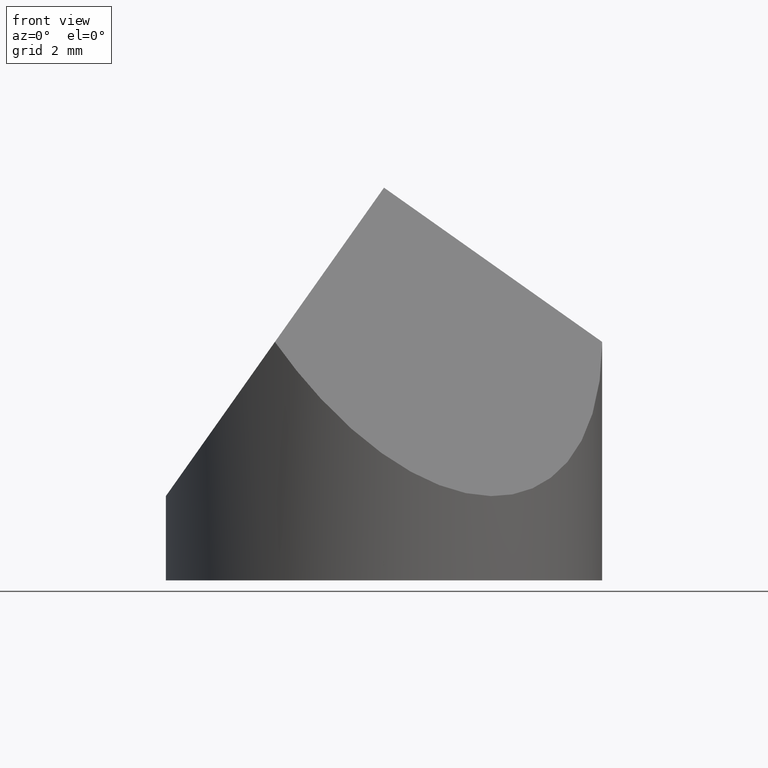
[diagram: clean part render]
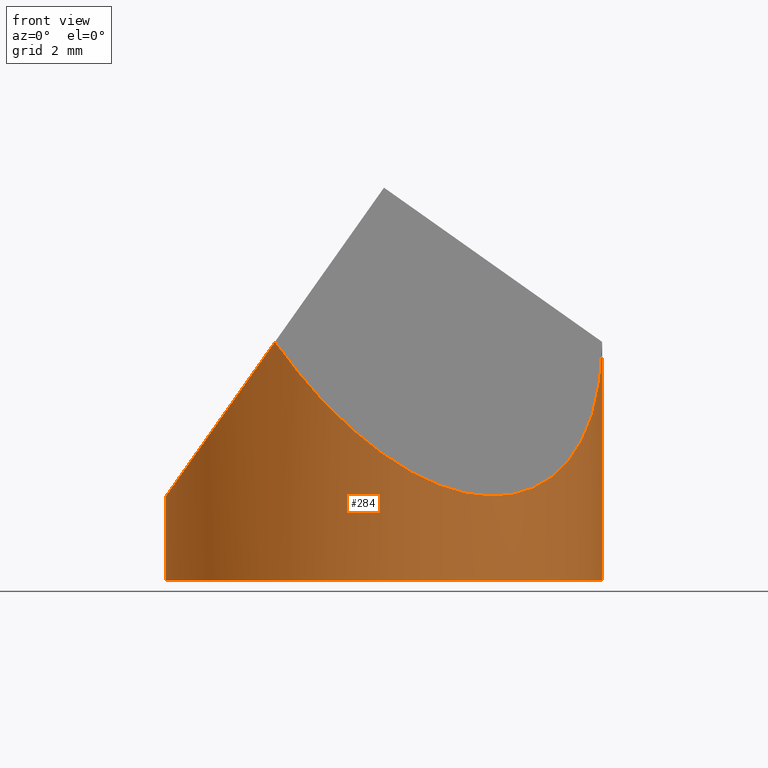
[diagram: same view with one face highlighted and labeled with its STEP entity id]
A machine part, front view. The second image highlights one B-rep face of the part: STEP entity #284.
In plain terms, the highlighted cylindrical surface (partial cylindrical patch) has radius 5 mm, axis along (-0, -0, -1).
Its self-contained STEP definition (entity closure, byte-faithful):
#2 = EDGE_CURVE ( 'NONE', #269, #208, #50, .T. ) ;
#17 = DIRECTION ( 'NONE',  ( -0.0000000000000000000, -0.0000000000000000000, -1.000000000000000000 ) ) ;
#31 = EDGE_CURVE ( 'NONE', #66, #208, #161, .T. ) ;
#32 = ORIENTED_EDGE ( 'NONE', *, *, #144, .T. ) ;
#47 = CARTESIAN_POINT ( 'NONE',  ( 1.249999999999996000, -6.495190528383294500, 0.1630009529932650000 ) ) ;
#50 = LINE ( 'NONE', #311, #280 ) ;
#52 = FACE_OUTER_BOUND ( 'NONE', #229, .T. ) ;
#59 = CYLINDRICAL_SURFACE ( 'NONE', #107, 5.000000000000000000 ) ;
#63 = CARTESIAN_POINT ( 'NONE',  ( 0.0000000000000000000, 0.0000000000000000000, 9.000000000000000000 ) ) ;
#66 = VERTEX_POINT ( 'NONE', #264 ) ;
#74 = LINE ( 'NONE', #150, #293 ) ;
#78 = EDGE_CURVE ( 'NONE', #269, #154, #282, .T. ) ;
#90 = CARTESIAN_POINT ( 'NONE',  ( -5.000000000000000000, 0.0000000000000000000, 1.930400762394619300 ) ) ;
#92 = ORIENTED_EDGE ( 'NONE', *, *, #2, .F. ) ;
#106 =( BOUNDED_CURVE ( )  B_SPLINE_CURVE ( 3, ( #133, #289, #238, #90 ),
 .UNSPECIFIED., .F., .T. ) 
 B_SPLINE_CURVE_WITH_KNOTS ( ( 4, 4 ),
 ( 5.235987755982989700, 6.283185307179586200 ),
 .UNSPECIFIED. ) 
 CURVE ( )  GEOMETRIC_REPRESENTATION_ITEM ( )  RATIONAL_B_SPLINE_CURVE ( ( 1.000000000000000000, 0.9106836025229592100, 0.9106836025229592100, 1.000000000000000000 ) ) 
 REPRESENTATION_ITEM ( '' )  );
#107 = AXIS2_PLACEMENT_3D ( 'NONE', #63, #277, #231 ) ;
#111 = DIRECTION ( 'NONE',  ( -0.0000000000000000000, -0.0000000000000000000, -1.000000000000000000 ) ) ;
#123 = ORIENTED_EDGE ( 'NONE', *, *, #204, .T. ) ;
#129 = ORIENTED_EDGE ( 'NONE', *, *, #31, .T. ) ;
#133 = CARTESIAN_POINT ( 'NONE',  ( -2.500000000000008400, -4.330127018922198100, 5.465200381197298900 ) ) ;
#144 = EDGE_CURVE ( 'NONE', #154, #148, #106, .T. ) ;
#145 = ORIENTED_EDGE ( 'NONE', *, *, #78, .T. ) ;
#148 = VERTEX_POINT ( 'NONE', #207 ) ;
#150 = CARTESIAN_POINT ( 'NONE',  ( -5.000000000000000000, 0.0000000000000000000, 9.000000000000000000 ) ) ;
#154 = VERTEX_POINT ( 'NONE', #203 ) ;
#161 = CIRCLE ( 'NONE', #192, 5.000000000000000000 ) ;
#166 = DIRECTION ( 'NONE',  ( 1.000000000000000000, 0.0000000000000000000, 0.0000000000000000000 ) ) ;
#189 = CARTESIAN_POINT ( 'NONE',  ( 5.000000000000000900, -4.330127018922195400, 0.1630009529932771300 ) ) ;
#192 = AXIS2_PLACEMENT_3D ( 'NONE', #310, #259, #166 ) ;
#203 = CARTESIAN_POINT ( 'NONE',  ( -2.500000000000008400, -4.330127018922198100, 5.465200381197298900 ) ) ;
#204 = EDGE_CURVE ( 'NONE', #148, #66, #74, .T. ) ;
#207 = CARTESIAN_POINT ( 'NONE',  ( -5.000000000000000000, 0.0000000000000000000, 1.930400762394619300 ) ) ;
#208 = VERTEX_POINT ( 'NONE', #283 ) ;
#218 = CARTESIAN_POINT ( 'NONE',  ( -2.500000000000008400, -4.330127018922198100, 5.465200381197298900 ) ) ;
#229 = EDGE_LOOP ( 'NONE', ( #92, #145, #32, #123, #129 ) ) ;
#231 = DIRECTION ( 'NONE',  ( -1.000000000000000000, 0.0000000000000000000, 0.0000000000000000000 ) ) ;
#238 = CARTESIAN_POINT ( 'NONE',  ( -5.000000000000000000, -1.830127018922190500, 1.930400762394619100 ) ) ;
#240 = CARTESIAN_POINT ( 'NONE',  ( 5.000000000000004400, 9.161633835790454200E-016, 5.465200381197320200 ) ) ;
#259 = DIRECTION ( 'NONE',  ( 0.0000000000000000000, 0.0000000000000000000, 1.000000000000000000 ) ) ;
#264 = CARTESIAN_POINT ( 'NONE',  ( -5.000000000000000000, 0.0000000000000000000, 0.0000000000000000000 ) ) ;
#269 = VERTEX_POINT ( 'NONE', #305 ) ;
#277 = DIRECTION ( 'NONE',  ( -0.0000000000000000000, -0.0000000000000000000, -1.000000000000000000 ) ) ;
#280 = VECTOR ( 'NONE', #111, 1000.000000000000000 ) ;
#282 =( BOUNDED_CURVE ( )  B_SPLINE_CURVE ( 3, ( #240, #189, #47, #218 ),
 .UNSPECIFIED., .F., .F. ) 
 B_SPLINE_CURVE_WITH_KNOTS ( ( 4, 4 ),
 ( 5.235987755982986200, 7.330382858376182800 ),
 .UNSPECIFIED. ) 
 CURVE ( )  GEOMETRIC_REPRESENTATION_ITEM ( )  RATIONAL_B_SPLINE_CURVE ( ( 1.000000000000000000, 0.6666666666666663000, 0.6666666666666663000, 1.000000000000000000 ) ) 
 REPRESENTATION_ITEM ( '' )  );
#283 = CARTESIAN_POINT ( 'NONE',  ( 5.000000000000000000, 6.123233995736766300E-016, 0.0000000000000000000 ) ) ;
#284 = ADVANCED_FACE ( 'NONE', ( #52 ), #59, .T. ) ;
#289 = CARTESIAN_POINT ( 'NONE',  ( -4.084936490538904500, -3.415063509461093300, 3.224227220163951900 ) ) ;
#293 = VECTOR ( 'NONE', #17, 1000.000000000000000 ) ;
#305 = CARTESIAN_POINT ( 'NONE',  ( 5.000000000000004400, 9.161633835790454200E-016, 5.465200381197320200 ) ) ;
#310 = CARTESIAN_POINT ( 'NONE',  ( 0.0000000000000000000, 0.0000000000000000000, 0.0000000000000000000 ) ) ;
#311 = CARTESIAN_POINT ( 'NONE',  ( 5.000000000000000000, 6.123233995736766300E-016, 9.000000000000000000 ) ) ;